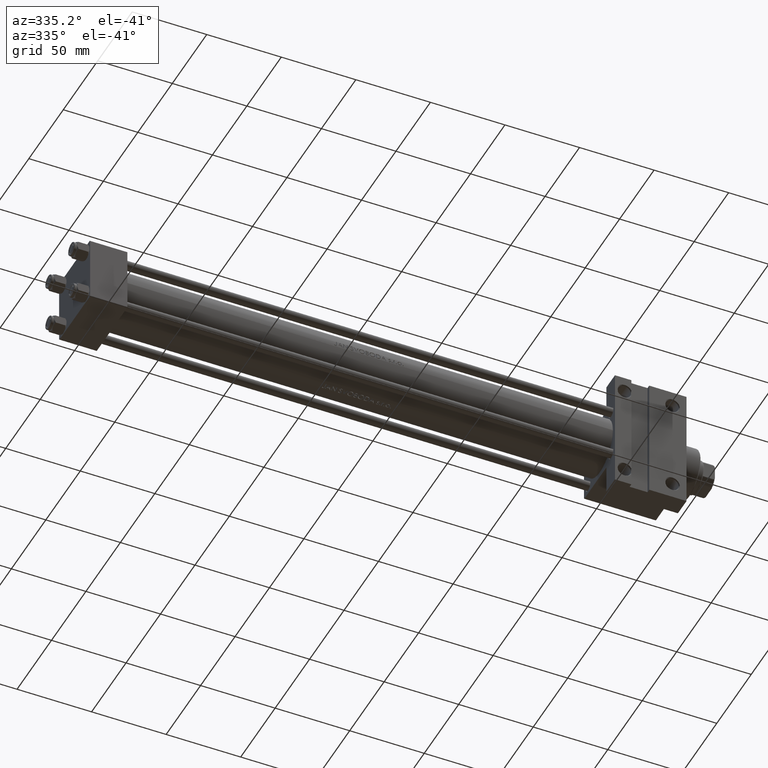
[diagram: clean part render]
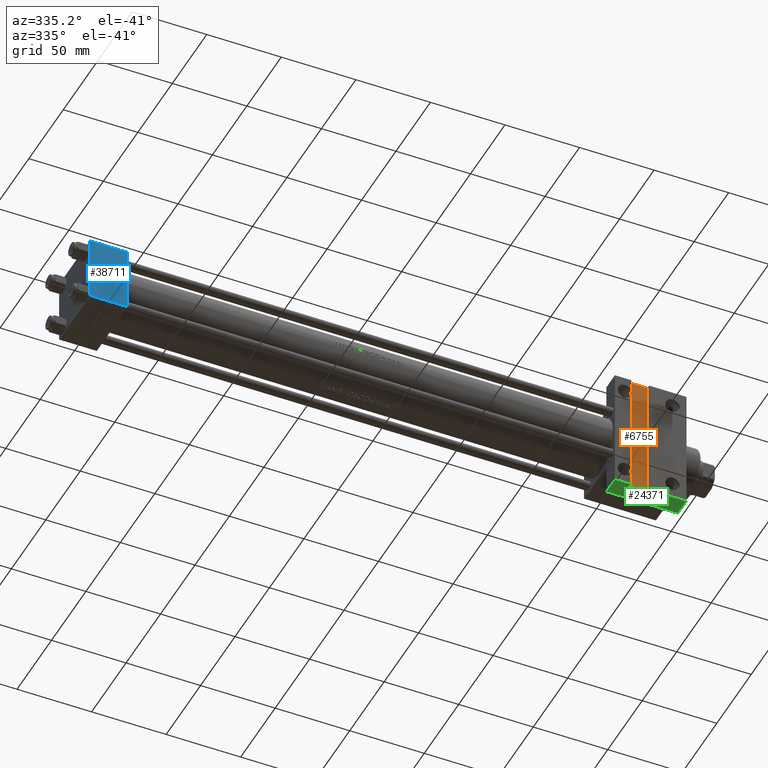
[diagram: same view with three faces highlighted in distinct colors, each labeled with its STEP entity id]
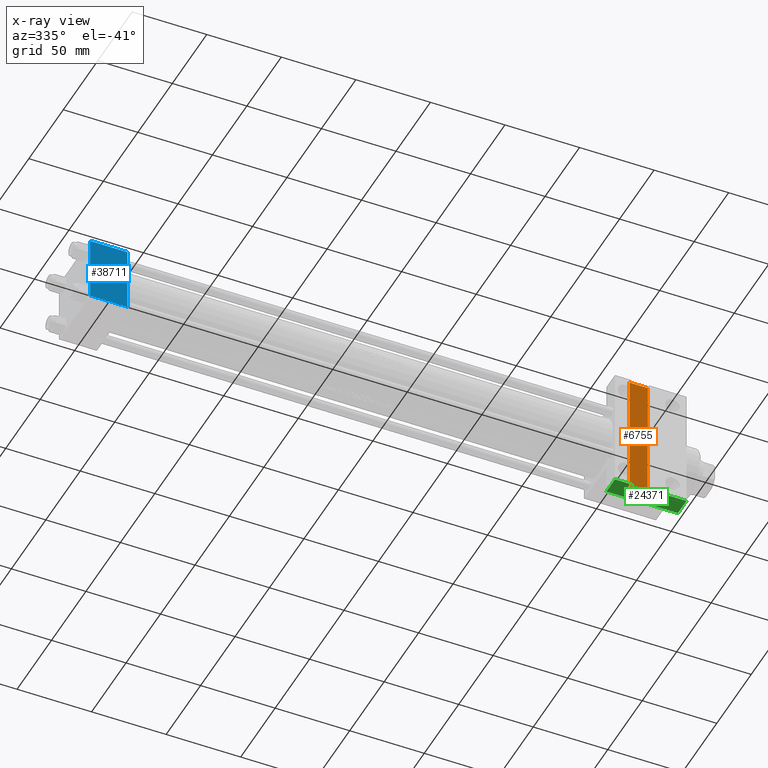
[diagram: x-ray of the same camera — body ghosted, the three highlighted faces saturated]
A machine part, auxiliary view with three faces highlighted in distinct colors.
The next image is the same camera in x-ray (body ghosted, the three faces saturated) — at least one of them is partly hidden behind the body in this view.
Their STEP definitions:

[orange] entity #6755 — the highlighted planar face has unit normal (0, -1, 0).
#566 = FACE_OUTER_BOUND ( 'NONE', #44428, .T. ) ;
#1215 = CARTESIAN_POINT ( 'NONE',  ( 363.0000000000000568, 41.99999999999996447, -20.00000000000000000 ) ) ;
#2583 = VECTOR ( 'NONE', #3839, 1000.000000000000000 ) ;
#3839 = DIRECTION ( 'NONE',  ( 0.000000000000000000, 1.000000000000000000, 0.000000000000000000 ) ) ;
#4351 = VERTEX_POINT ( 'NONE', #43420 ) ;
#6329 = DIRECTION ( 'NONE',  ( 1.000000000000000000, 0.000000000000000000, 0.000000000000000000 ) ) ;
#6645 = DIRECTION ( 'NONE',  ( -0.000000000000000000, -1.000000000000000000, -0.000000000000000000 ) ) ;
#6755 = ADVANCED_FACE ( 'NONE', ( #566 ), #41106, .T. ) ;
#7433 = CARTESIAN_POINT ( 'NONE',  ( 375.0000000000000000, 41.99999999999996447, -20.00000000000000000 ) ) ;
#8652 = VECTOR ( 'NONE', #24343, 1000.000000000000000 ) ;
#9614 = CARTESIAN_POINT ( 'NONE',  ( 363.0000000000000568, -41.99999999999996447, -20.00000000000000000 ) ) ;
#9942 = CARTESIAN_POINT ( 'NONE',  ( 363.0000000000000568, 41.99999999999996447, -20.00000000000000000 ) ) ;
#11238 = CARTESIAN_POINT ( 'NONE',  ( 375.0000000000000000, -41.99999999999996447, -20.00000000000000000 ) ) ;
#11388 = AXIS2_PLACEMENT_3D ( 'NONE', #18923, #11669, #18682 ) ;
#11616 = EDGE_CURVE ( 'NONE', #40375, #43195, #43451, .T. ) ;
#11669 = DIRECTION ( 'NONE',  ( 0.000000000000000000, 0.000000000000000000, -1.000000000000000000 ) ) ;
#15204 = ORIENTED_EDGE ( 'NONE', *, *, #24899, .T. ) ;
#18682 = DIRECTION ( 'NONE',  ( -1.000000000000000000, 0.000000000000000000, -0.000000000000000000 ) ) ;
#18923 = CARTESIAN_POINT ( 'NONE',  ( 0.000000000000000000, 0.000000000000000000, -20.00000000000000000 ) ) ;
#19262 = ORIENTED_EDGE ( 'NONE', *, *, #11616, .T. ) ;
#20062 = EDGE_CURVE ( 'NONE', #43910, #4351, #20715, .T. ) ;
#20715 = LINE ( 'NONE', #9614, #8652 ) ;
#20991 = ORIENTED_EDGE ( 'NONE', *, *, #20062, .T. ) ;
#22018 = ORIENTED_EDGE ( 'NONE', *, *, #29877, .T. ) ;
#22189 = LINE ( 'NONE', #44606, #2583 ) ;
#24343 = DIRECTION ( 'NONE',  ( -1.000000000000000000, -0.000000000000000000, -0.000000000000000000 ) ) ;
#24899 = EDGE_CURVE ( 'NONE', #43195, #43910, #43070, .T. ) ;
#25367 = VECTOR ( 'NONE', #6329, 1000.000000000000000 ) ;
#29877 = EDGE_CURVE ( 'NONE', #4351, #40375, #22189, .T. ) ;
#34175 = VECTOR ( 'NONE', #6645, 1000.000000000000000 ) ;
#40375 = VERTEX_POINT ( 'NONE', #1215 ) ;
#41106 = PLANE ( 'NONE',  #11388 ) ;
#43070 = LINE ( 'NONE', #43307, #34175 ) ;
#43195 = VERTEX_POINT ( 'NONE', #7433 ) ;
#43307 = CARTESIAN_POINT ( 'NONE',  ( 375.0000000000000000, -41.99999999999996447, -20.00000000000000000 ) ) ;
#43420 = CARTESIAN_POINT ( 'NONE',  ( 363.0000000000000568, -41.99999999999996447, -20.00000000000000000 ) ) ;
#43451 = LINE ( 'NONE', #9942, #25367 ) ;
#43910 = VERTEX_POINT ( 'NONE', #11238 ) ;
#44428 = EDGE_LOOP ( 'NONE', ( #15204, #20991, #22018, #19262 ) ) ;
#44606 = CARTESIAN_POINT ( 'NONE',  ( 363.0000000000000568, -41.99999999999996447, -20.00000000000000000 ) ) ;

[blue] entity #38711 — the highlighted planar face has unit normal (0, -1, -0).
#2218 = DIRECTION ( 'NONE',  ( 0.000000000000000000, -1.000000000000000000, -2.312964634635742957E-16 ) ) ;
#3594 = EDGE_CURVE ( 'NONE', #45639, #20757, #12927, .T. ) ;
#3786 = ORIENTED_EDGE ( 'NONE', *, *, #44353, .F. ) ;
#5416 = VECTOR ( 'NONE', #2218, 1000.000000000000000 ) ;
#8341 = AXIS2_PLACEMENT_3D ( 'NONE', #25192, #17698, #28339 ) ;
#10189 = LINE ( 'NONE', #10653, #5416 ) ;
#10653 = CARTESIAN_POINT ( 'NONE',  ( 0.000000000000000000, 22.50000000000000000, -22.49999999999999645 ) ) ;
#12418 = CARTESIAN_POINT ( 'NONE',  ( 0.000000000000000000, -21.99999999999998579, -22.50000000000000711 ) ) ;
#12927 = LINE ( 'NONE', #38265, #24394 ) ;
#13376 = FACE_OUTER_BOUND ( 'NONE', #38173, .T. ) ;
#17698 = DIRECTION ( 'NONE',  ( 0.000000000000000000, 2.312964634635742957E-16, -1.000000000000000000 ) ) ;
#18281 = LINE ( 'NONE', #39990, #32568 ) ;
#20098 = VERTEX_POINT ( 'NONE', #27491 ) ;
#20757 = VERTEX_POINT ( 'NONE', #24468 ) ;
#21556 = EDGE_CURVE ( 'NONE', #20757, #20098, #29798, .T. ) ;
#23171 = ORIENTED_EDGE ( 'NONE', *, *, #21556, .T. ) ;
#24394 = VECTOR ( 'NONE', #31742, 1000.000000000000000 ) ;
#24468 = CARTESIAN_POINT ( 'NONE',  ( 25.00000000000000000, -21.99999999999997158, -22.50000000000000711 ) ) ;
#25192 = CARTESIAN_POINT ( 'NONE',  ( 25.00000000000000000, 22.50000000000000000, -22.49999999999999645 ) ) ;
#25539 = DIRECTION ( 'NONE',  ( 1.000000000000000000, 0.000000000000000000, 0.000000000000000000 ) ) ;
#27046 = ORIENTED_EDGE ( 'NONE', *, *, #3594, .T. ) ;
#27491 = CARTESIAN_POINT ( 'NONE',  ( 0.000000000000000000, -21.99999999999997158, -22.50000000000000711 ) ) ;
#28339 = DIRECTION ( 'NONE',  ( 0.000000000000000000, 1.000000000000000000, 2.312964634635742957E-16 ) ) ;
#28570 = EDGE_CURVE ( 'NONE', #37221, #45639, #18281, .T. ) ;
#28580 = PLANE ( 'NONE',  #8341 ) ;
#29798 = LINE ( 'NONE', #12418, #35682 ) ;
#31742 = DIRECTION ( 'NONE',  ( 0.000000000000000000, -1.000000000000000000, -2.312964634635742957E-16 ) ) ;
#32568 = VECTOR ( 'NONE', #25539, 1000.000000000000000 ) ;
#34677 = CARTESIAN_POINT ( 'NONE',  ( 0.000000000000000000, 21.99999999999999289, -22.49999999999999645 ) ) ;
#34937 = CARTESIAN_POINT ( 'NONE',  ( 25.00000000000000000, 21.99999999999999289, -22.49999999999999645 ) ) ;
#35682 = VECTOR ( 'NONE', #41605, 1000.000000000000000 ) ;
#37221 = VERTEX_POINT ( 'NONE', #34677 ) ;
#38173 = EDGE_LOOP ( 'NONE', ( #3786, #47234, #27046, #23171 ) ) ;
#38265 = CARTESIAN_POINT ( 'NONE',  ( 25.00000000000000000, 22.50000000000000000, -22.49999999999999645 ) ) ;
#38711 = ADVANCED_FACE ( 'NONE', ( #13376 ), #28580, .T. ) ;
#39990 = CARTESIAN_POINT ( 'NONE',  ( 25.00000000000000000, 21.99999999999999289, -22.49999999999999645 ) ) ;
#41605 = DIRECTION ( 'NONE',  ( -1.000000000000000000, 0.000000000000000000, 0.000000000000000000 ) ) ;
#44353 = EDGE_CURVE ( 'NONE', #37221, #20098, #10189, .T. ) ;
#45639 = VERTEX_POINT ( 'NONE', #34937 ) ;
#47234 = ORIENTED_EDGE ( 'NONE', *, *, #28570, .T. ) ;

[green] entity #24371 — the highlighted planar face has unit normal (0, 0, -1).
#585 = VECTOR ( 'NONE', #29361, 1000.000000000000000 ) ;
#1144 = VERTEX_POINT ( 'NONE', #44604 ) ;
#1215 = CARTESIAN_POINT ( 'NONE',  ( 363.0000000000000568, 41.99999999999996447, -20.00000000000000000 ) ) ;
#3661 = DIRECTION ( 'NONE',  ( -0.000000000000000000, 1.000000000000000000, 0.000000000000000000 ) ) ;
#4131 = AXIS2_PLACEMENT_3D ( 'NONE', #11149, #3661, #25875 ) ;
#4483 = ORIENTED_EDGE ( 'NONE', *, *, #24433, .F. ) ;
#6329 = DIRECTION ( 'NONE',  ( 1.000000000000000000, 0.000000000000000000, 0.000000000000000000 ) ) ;
#7288 = FACE_OUTER_BOUND ( 'NONE', #24737, .T. ) ;
#7433 = CARTESIAN_POINT ( 'NONE',  ( 375.0000000000000000, 41.99999999999996447, -20.00000000000000000 ) ) ;
#7522 = CARTESIAN_POINT ( 'NONE',  ( 352.0000000000000000, 41.99999999999996447, -9.999999999999998224 ) ) ;
#7533 = DIRECTION ( 'NONE',  ( -0.000000000000000000, -0.000000000000000000, -1.000000000000000000 ) ) ;
#7672 = VECTOR ( 'NONE', #35801, 1000.000000000000000 ) ;
#8081 = ORIENTED_EDGE ( 'NONE', *, *, #11616, .F. ) ;
#9942 = CARTESIAN_POINT ( 'NONE',  ( 363.0000000000000568, 41.99999999999996447, -20.00000000000000000 ) ) ;
#10320 = CARTESIAN_POINT ( 'NONE',  ( 352.0000000000000000, 41.99999999999996447, -9.999999999999998224 ) ) ;
#10446 = LINE ( 'NONE', #7522, #32644 ) ;
#11149 = CARTESIAN_POINT ( 'NONE',  ( 352.0000000000000000, 41.99999999999996447, -9.999999999999998224 ) ) ;
#11389 = DIRECTION ( 'NONE',  ( 0.000000000000000000, 0.000000000000000000, -1.000000000000000000 ) ) ;
#11616 = EDGE_CURVE ( 'NONE', #40375, #43195, #43451, .T. ) ;
#11661 = DIRECTION ( 'NONE',  ( -0.000000000000000000, -0.000000000000000000, -1.000000000000000000 ) ) ;
#12224 = VECTOR ( 'NONE', #11661, 1000.000000000000000 ) ;
#13118 = CARTESIAN_POINT ( 'NONE',  ( 400.0000000000000000, 41.99999999999996447, -9.999999999999998224 ) ) ;
#14533 = CARTESIAN_POINT ( 'NONE',  ( 363.0000000000000568, 41.99999999999996447, -20.00000000000000000 ) ) ;
#14780 = VERTEX_POINT ( 'NONE', #34574 ) ;
#17653 = CARTESIAN_POINT ( 'NONE',  ( 352.0000000000000000, 41.99999999999996447, -22.50000000000000000 ) ) ;
#17798 = VERTEX_POINT ( 'NONE', #23559 ) ;
#20963 = EDGE_CURVE ( 'NONE', #40375, #23173, #34073, .T. ) ;
#22760 = ORIENTED_EDGE ( 'NONE', *, *, #23694, .F. ) ;
#23173 = VERTEX_POINT ( 'NONE', #40496 ) ;
#23559 = CARTESIAN_POINT ( 'NONE',  ( 400.0000000000000000, 41.99999999999996447, -9.999999999999998224 ) ) ;
#23694 = EDGE_CURVE ( 'NONE', #14780, #47301, #43689, .T. ) ;
#24371 = ADVANCED_FACE ( 'NONE', ( #7288 ), #25167, .T. ) ;
#24413 = LINE ( 'NONE', #46818, #43111 ) ;
#24433 = EDGE_CURVE ( 'NONE', #1144, #34561, #10446, .T. ) ;
#24737 = EDGE_LOOP ( 'NONE', ( #40505, #8081, #47016, #26135, #4483, #46553, #47395, #22760 ) ) ;
#25167 = PLANE ( 'NONE',  #4131 ) ;
#25367 = VECTOR ( 'NONE', #6329, 1000.000000000000000 ) ;
#25875 = DIRECTION ( 'NONE',  ( 0.000000000000000000, -0.000000000000000000, 1.000000000000000000 ) ) ;
#26135 = ORIENTED_EDGE ( 'NONE', *, *, #42068, .F. ) ;
#26403 = CARTESIAN_POINT ( 'NONE',  ( 375.0000000000000000, 41.99999999999996447, -20.00000000000000000 ) ) ;
#29361 = DIRECTION ( 'NONE',  ( 1.000000000000000000, 0.000000000000000000, 0.000000000000000000 ) ) ;
#29529 = VECTOR ( 'NONE', #7533, 1000.000000000000000 ) ;
#32644 = VECTOR ( 'NONE', #11389, 1000.000000000000000 ) ;
#33144 = LINE ( 'NONE', #26403, #12224 ) ;
#34073 = LINE ( 'NONE', #14533, #29529 ) ;
#34561 = VERTEX_POINT ( 'NONE', #38080 ) ;
#34574 = CARTESIAN_POINT ( 'NONE',  ( 375.0000000000000000, 41.99999999999996447, -22.50000000000000000 ) ) ;
#34761 = EDGE_CURVE ( 'NONE', #1144, #17798, #46737, .T. ) ;
#34784 = DIRECTION ( 'NONE',  ( 1.000000000000000000, 0.000000000000000000, 0.000000000000000000 ) ) ;
#35801 = DIRECTION ( 'NONE',  ( 0.000000000000000000, 0.000000000000000000, -1.000000000000000000 ) ) ;
#36545 = VECTOR ( 'NONE', #47080, 1000.000000000000000 ) ;
#38080 = CARTESIAN_POINT ( 'NONE',  ( 352.0000000000000000, 41.99999999999996447, -22.50000000000000000 ) ) ;
#39876 = EDGE_CURVE ( 'NONE', #43195, #14780, #33144, .T. ) ;
#40375 = VERTEX_POINT ( 'NONE', #1215 ) ;
#40496 = CARTESIAN_POINT ( 'NONE',  ( 363.0000000000000568, 41.99999999999996447, -22.50000000000000000 ) ) ;
#40505 = ORIENTED_EDGE ( 'NONE', *, *, #39876, .F. ) ;
#41835 = EDGE_CURVE ( 'NONE', #17798, #47301, #42316, .T. ) ;
#42068 = EDGE_CURVE ( 'NONE', #34561, #23173, #24413, .T. ) ;
#42108 = CARTESIAN_POINT ( 'NONE',  ( 400.0000000000000000, 41.99999999999996447, -22.50000000000000000 ) ) ;
#42316 = LINE ( 'NONE', #13118, #7672 ) ;
#43111 = VECTOR ( 'NONE', #34784, 1000.000000000000000 ) ;
#43195 = VERTEX_POINT ( 'NONE', #7433 ) ;
#43451 = LINE ( 'NONE', #9942, #25367 ) ;
#43689 = LINE ( 'NONE', #17653, #36545 ) ;
#44604 = CARTESIAN_POINT ( 'NONE',  ( 352.0000000000000000, 41.99999999999996447, -9.999999999999998224 ) ) ;
#46553 = ORIENTED_EDGE ( 'NONE', *, *, #34761, .T. ) ;
#46737 = LINE ( 'NONE', #10320, #585 ) ;
#46818 = CARTESIAN_POINT ( 'NONE',  ( 352.0000000000000000, 41.99999999999996447, -22.50000000000000000 ) ) ;
#47016 = ORIENTED_EDGE ( 'NONE', *, *, #20963, .T. ) ;
#47080 = DIRECTION ( 'NONE',  ( 1.000000000000000000, 0.000000000000000000, 0.000000000000000000 ) ) ;
#47301 = VERTEX_POINT ( 'NONE', #42108 ) ;
#47395 = ORIENTED_EDGE ( 'NONE', *, *, #41835, .T. ) ;